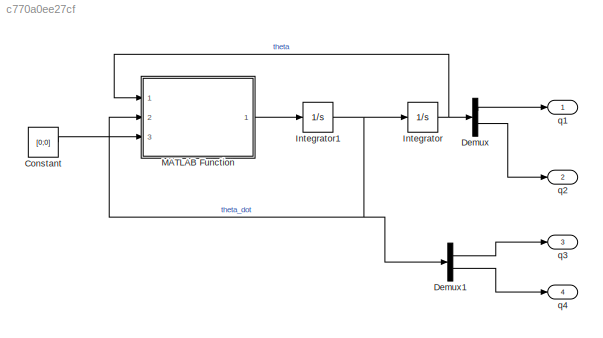
MODEL slx_c770a0ee27cf
KIND model
CONFIG AbsTol = auto
CONFIG EnableMultiTasking = off
CONFIG FixedStep = auto
CONFIG MaxStep = auto
CONFIG MinStep = auto
CONFIG RelTol = 1e-3
CONFIG SampleTimeConstraint = Unconstrained
CONFIG SolverName = VariableStepAuto
CONFIG StartTime = 0.0
CONFIG StopTime = 10.0
BLOCK [Constant] Constant
  Value = [0;0]
BLOCK [Demux] Demux
  Outputs = 2
  Ports = [1, 2]
BLOCK [Demux] Demux1
  Outputs = 2
  Ports = [1, 2]
BLOCK [Integrator] Integrator
  InitialCondition = [0;0]
  Ports = [1, 1]
BLOCK [Integrator] Integrator1
  InitialCondition = [0;0]
  Ports = [1, 1]
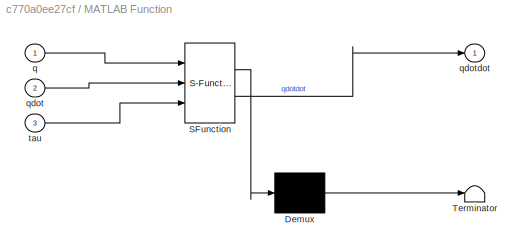
BLOCK [SubSystem] MATLAB Function
  ErrorFcn = Stateflow.Translate.translate
  PermitHierarchicalResolution = ExplicitOnly
  Ports = [3, 1]
  RequestExecContextInheritance = off
  SFBlockType = MATLAB Function
  TreatAsAtomicUnit = on
BLOCK [Demux] MATLAB Function/ Demux 
  Outputs = 1
  Ports = [1, 1]
BLOCK [S-Function] MATLAB Function/ SFunction 
  EnableBusSupport = on
  FunctionName = sf_sfun
  PortCounts = [3 2]
  Ports = [3, 2]
  SFcnIsStateOwnerBlock = off
  SFunctionDeploymentMode = off
  Tag = Stateflow S-Function 2
BLOCK [Terminator] MATLAB Function/ Terminator 
BLOCK [Inport] MATLAB Function/q
BLOCK [Inport] MATLAB Function/qdot
  Port = 2
BLOCK [Outport] MATLAB Function/qdotdot
BLOCK [Inport] MATLAB Function/tau
  Port = 3
BLOCK [Outport] q1
BLOCK [Outport] q2
  Port = 2
BLOCK [Outport] q3
  Port = 3
BLOCK [Outport] q4
  Port = 4
LINE Constant:1 -> MATLAB Function:3
LINE Demux1:1 -> q3:1
LINE Demux1:2 -> q4:1
LINE Demux:1 -> q1:1
LINE Demux:2 -> q2:1
NET Integrator1:1 -> Demux1:1, Integrator:1, MATLAB Function:2
NET Integrator:1 -> Demux:1, MATLAB Function:1
LINE MATLAB Function:1 -> Integrator1:1
note: NET lines group one-source signal fan-out (src -> all destinations, sorted); 1:1 wires keep LINE
CHART MATLAB Function states=1 transitions=1
  STATE_LABEL 'eML_blk_kernel()'
  STATE_LABEL 'SCRIPT:\nfunction qdotdot = lab2_1(q,qdot,tau)\ng = 9.81;\n\ntheta2 = q(1);\ntheta3 = q(2);\n\ntheta2_dot = qdot(1);\ntheta3_dot = qdot(2);\n\np = [0.03; 0.0128; 0.0076; 0.0753; 0.0298];\n\np1 = p(1);\np2 = p(2);\np3 = p(3);\np4 = p(4);\np5 = p(5);\n\nM = [[p1                        -p3*sin(theta3 - theta2)];\n     [-p3*sin(theta3 - theta2)                        p2]];\nC = [[0                                 -p3*cos...<+218ch>'
CHART  states=0 transitions=0
